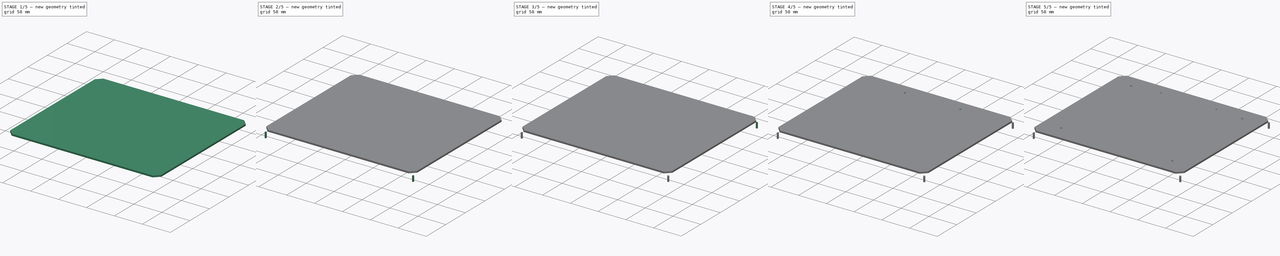
[diagram: build sequence overview — one tinted view per stage of 5, left to right]
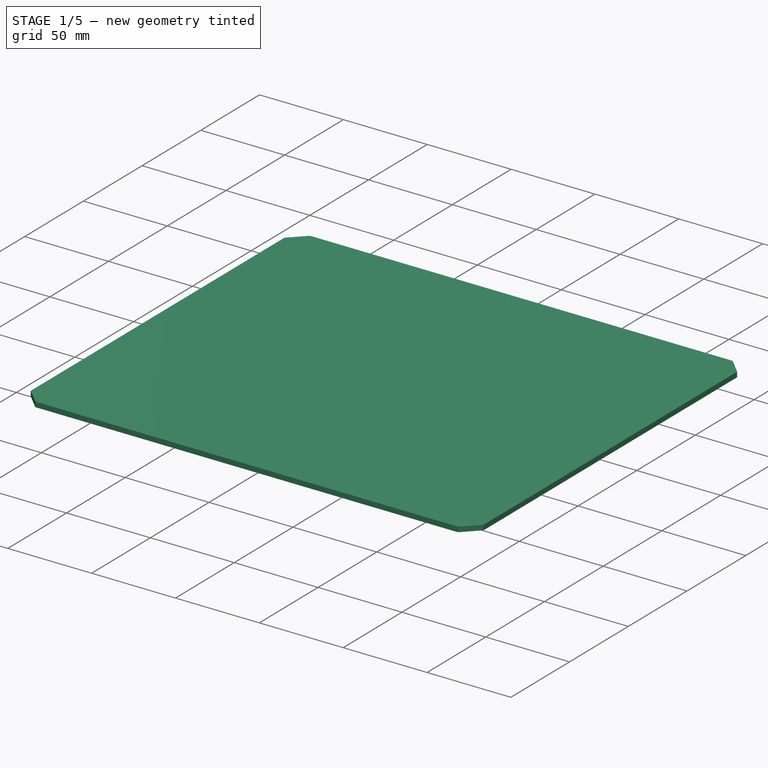
[diagram: stage 1 of 5 — iso view after this stage's code; geometry added in this stage tinted green]
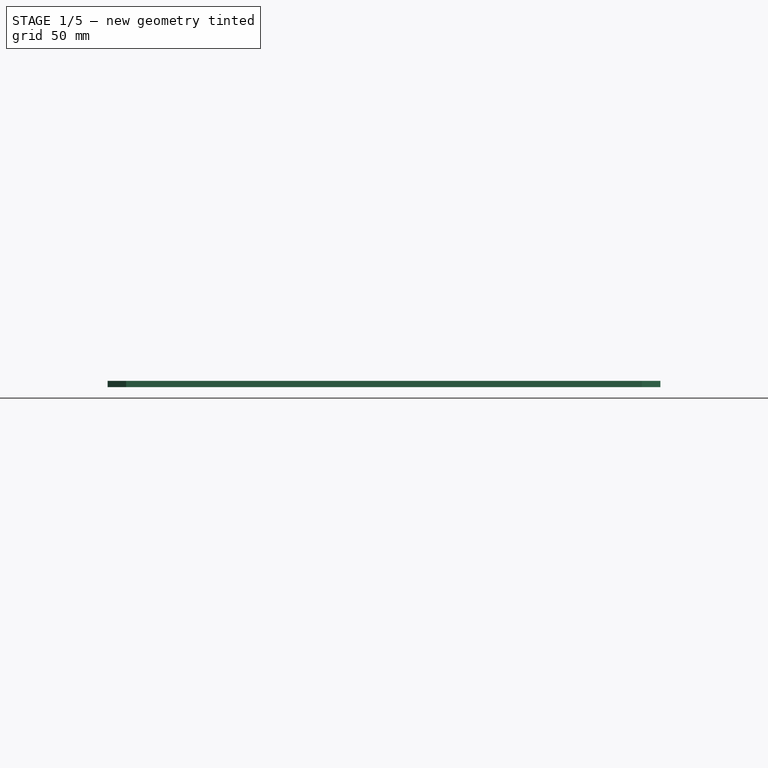
[diagram: stage 1 of 5 — front view after this stage's code; geometry added in this stage tinted green]
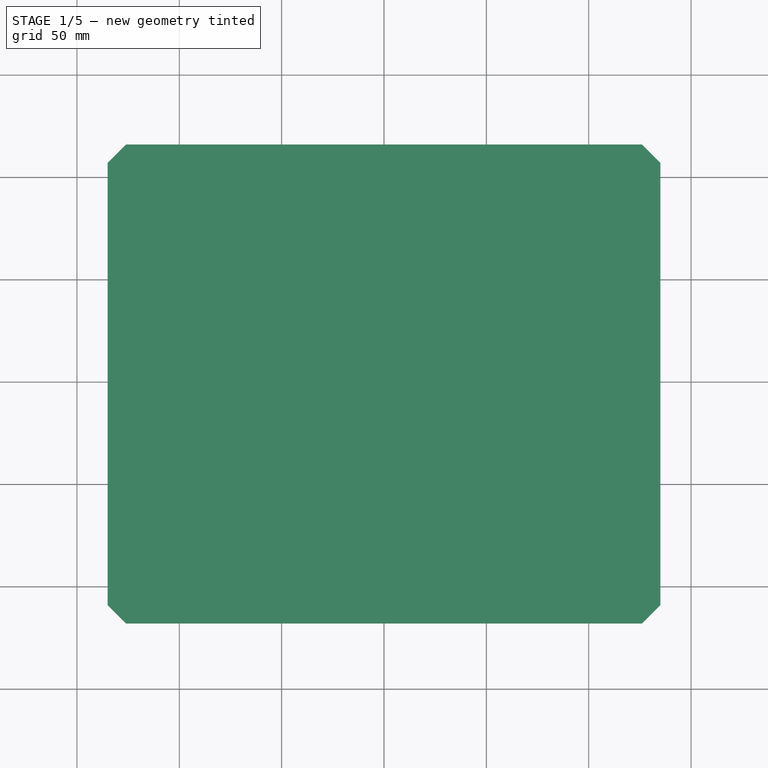
[diagram: stage 1 of 5 — top view after this stage's code; geometry added in this stage tinted green]
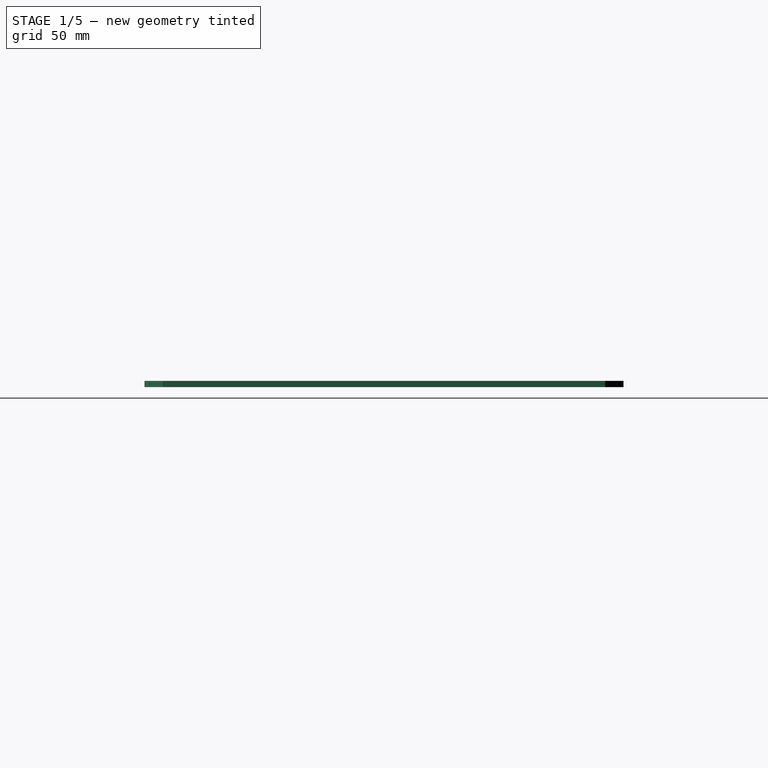
[diagram: stage 1 of 5 — right view after this stage's code; geometry added in this stage tinted green]
FCSTD DOCUMENT  (FreeCAD 0.19R24291 (Git))
Label: glass-bed
License: Other
LicenseURL: GPL3
objects: Part::FeaturePython×12, TechDraw::DrawViewDimension×8, Sketcher::SketchObject×6, PartDesign::Pad×4, PartDesign::Body×4, PartDesign::Pocket×2, PartDesign::Chamfer×2, App::Part×2, TechDraw::DrawSVGTemplate×2, TechDraw::DrawViewPart×2, TechDraw::DrawViewBalloon×2, TechDraw::DrawViewAnnotation×2, TechDraw::DrawPage×2
note: 38 computed .brp shape members not serialized (recipe doc carries the construction recipe); baked Part::Feature solids carry a one-line shape summary decoded from their .brp

FEATURE [PartDesign::Body] Body  label="180-aluminum-plate"
  Group = -> [Sketch,Pad,Sketch001,Pocket]
  Origin = -> Origin
  Placement = pos=(0,0,-7) rot=(0,0,1;0rad)
  Tip = -> Pocket
FEATURE [Sketcher::SketchObject] Sketch002
  FullyConstrained = true
  MapMode = 5
  Support = -> [XY_Plane001]
  sketch-geometry (4):
    g0: LineSegment StartX=-103 StartY=93 StartZ=0 EndX=103 EndY=93 EndZ=0
    g1: LineSegment StartX=103 StartY=93 StartZ=0 EndX=103 EndY=-93 EndZ=0
    g2: LineSegment StartX=103 StartY=-93 StartZ=0 EndX=-103 EndY=-93 EndZ=0
    g3: LineSegment StartX=-103 StartY=-93 StartZ=0 EndX=-103 EndY=93 EndZ=0
  constraints (12):
    c: Coincident(g0,g1)
    c: Coincident(g1,g2)
    c: Coincident(g2,g3)
    c: Coincident(g3,g0)
    c: Horizontal(g0)
    c: Horizontal(g2)
    c: Vertical(g1)
    c: Vertical(g3)
    c: DistanceX(g2,g2) = 206
    c: DistanceY(g1,g1) = 186
    c: DistanceY(g-1,g0) = 93
    c: DistanceX(g2,g-1) = 103
FEATURE [PartDesign::Pad] Pad001
  Direction = (1,1,1)
  Length = 3
  Length2 = 100
  Profile = -> Sketch002
  Type = 0
FEATURE [PartDesign::Chamfer] Chamfer
  Angle = 45
  Base = -> Pad001 [Edge8,Edge5,Edge2,Edge1]
  BaseFeature = -> Pad001
  ChamferType = 0
  FlipDirection = false
  Size = 9
  Size2 = 1
  SupportTransform = false
FEATURE [Sketcher::SketchObject] Sketch005
  FullyConstrained = true
  MapMode = 5
  Support = -> [XY_Plane005]
  sketch-geometry (4):
    g0: LineSegment StartX=-135 StartY=116 StartZ=0 EndX=135 EndY=116 EndZ=0
    g1: LineSegment StartX=135 StartY=116 StartZ=0 EndX=135 EndY=-118 EndZ=0
    g2: LineSegment StartX=135 StartY=-118 StartZ=0 EndX=-135 EndY=-118 EndZ=0
    g3: LineSegment StartX=-135 StartY=-118 StartZ=0 EndX=-135 EndY=116 EndZ=0
  constraints (12):
    c: Coincident(g0,g1)
    c: Coincident(g1,g2)
    c: Coincident(g2,g3)
    c: Coincident(g3,g0)
    c: Horizontal(g0)
    c: Horizontal(g2)
    c: Vertical(g1)
    c: Vertical(g3)
    c: DistanceX(g2,g2) = 270
    c: DistanceX(g2,g-1) = 135
    c: DistanceY(g2,g-1) = 118
    c: DistanceY(g-1,g0) = 116
FEATURE [PartDesign::Pad] Pad003
  Direction = (1,1,1)
  Length = 3
  Length2 = 100
  Profile = -> Sketch005
  Type = 0
FEATURE [PartDesign::Chamfer] Chamfer001
  Angle = 45
  Base = -> Pad003 [Edge1,Edge8,Edge5,Edge2]
  BaseFeature = -> Pad003
  ChamferType = 0
  FlipDirection = false
  Size = 9
  Size2 = 1
  SupportTransform = false
FEATURE [PartDesign::Body] Body003  label="250-glass-plate"
  Group = -> [Sketch005,Pad003,Chamfer001]
  Origin = -> Origin005
  Tip = -> Chamfer001
FEATURE [App::Part] Part001  label="250-glass-bed"
  Group = -> [Body002,Body003]
  Origin = -> Origin004
FEATURE [TechDraw::DrawSVGTemplate] Template
  EditableTexts = AuthorName=SnakeOil XY; CheckDate=-; CreationDate=2021-11-17; DrawingNumber=1 of 1; FC-Scale=1; FC-Title=180 glass plate; SheetNumber=1; Subtitle=206mm x 186mm (3 or 4mm thick); SupervisorName=-; Weight=-
  Height = 297
  Orientation = 1
  Width = 420
FEATURE [TechDraw::DrawViewPart] View
  CoarseView = false
  Direction = (0,0,1)
  Focus = 100
  HardHidden = false
  IsoCount = 0
  IsoHidden = false
  IsoVisible = false
  LockPosition = false
  Perspective = false
  Rotation = 0
  ScaleType = 0
  SeamHidden = false
  SeamVisible = true
  SmoothHidden = false
  SmoothVisible = true
  Source = -> [Body001]
  X = 147.114
  XDirection = (1,0,0)
  Y = 184.793
FEATURE [TechDraw::DrawViewDimension] Dimension
  Arbitrary = false
  ArbitraryTolerances = false
  EqualTolerance = true
  FormatSpec = %.2f
  FormatSpecOverTolerance = %+.2f
  FormatSpecUnderTolerance = %+.2f
  Inverted = false
  LockPosition = false
  MeasureType = 1
  OverTolerance = 0
  References2D = -> [View]
  Rotation = 0
  ScaleType = 0
  TheoreticalExact = false
  Type = 1
  UnderTolerance = 0
  X = -2.4228
  Y = -105.454
FEATURE [TechDraw::DrawViewDimension] Dimension001
  Arbitrary = false
  ArbitraryTolerances = false
  EqualTolerance = true
  FormatSpec = %.2f
  FormatSpecOverTolerance = %+.2f
  FormatSpecUnderTolerance = %+.2f
  Inverted = false
  LockPosition = false
  MeasureType = 1
  OverTolerance = 0
  References2D = -> [View]
  Rotation = 0
  ScaleType = 0
  TheoreticalExact = false
  Type = 2
  UnderTolerance = 0
  X = -118.814
  Y = -2.41699
FEATURE [TechDraw::DrawViewDimension] Dimension002
  Arbitrary = false
  ArbitraryTolerances = false
  EqualTolerance = true
  FormatSpec = %.2f
  FormatSpecOverTolerance = %+.2f
  FormatSpecUnderTolerance = %+.2f
  Inverted = false
  LockPosition = false
  MeasureType = 1
  OverTolerance = 0
  References2D = -> [View]
  Rotation = 0
  ScaleType = 0
  TheoreticalExact = false
  Type = 1
  UnderTolerance = 0
  X = -86.415
  Y = -97.04
FEATURE [TechDraw::DrawViewDimension] Dimension003
  Arbitrary = false
  ArbitraryTolerances = false
  EqualTolerance = true
  FormatSpec = %.2f
  FormatSpecOverTolerance = %+.2f
  FormatSpecUnderTolerance = %+.2f
  Inverted = false
  LockPosition = false
  MeasureType = 1
  OverTolerance = 0
  References2D = -> [View]
  Rotation = 0
  ScaleType = 0
  TheoreticalExact = false
  Type = 2
  UnderTolerance = 0
  X = -112.357
  Y = -68.1973
FEATURE [TechDraw::DrawViewBalloon] Balloon
  BubbleShape = 6
  EndType = 0
  EndTypeScale = 1
  KinkLength = 5
  LockPosition = false
  OriginX = 102.509
  OriginY = -85.123
  Rotation = 0
  ScaleType = 0
  ShapeScale = 1
  SourceView = -> View
  Text = 4x 9mm chamfer
  TextWrapLen = -1
  X = 135.218
  Y = -91.4233
FEATURE [TechDraw::DrawViewAnnotation] Annotation
  Font = osifont
  LineSpace = 80
  LockPosition = false
  MaxWidth = -1
  Rotation = 0
  ScaleType = 0
  Text = Dimensions in mm
  TextSize = 5
  TextStyle = 0
  X = 287.058
  Y = 31.3242
FEATURE [TechDraw::DrawPage] Page  label="180-glass-plate-drawing"
  KeepUpdated = true
  NextBalloonIndex = 2
  ProjectionType = 0
  Template = -> Template
  Views = -> [View,Dimension,Dimension001,Dimension002,Dimension003,Balloon,Annotation]
FEATURE [TechDraw::DrawSVGTemplate] Template001
  EditableTexts = AuthorName=SnakeOil XY; CheckDate=-; CreationDate=2021-11-17; DrawingNumber=1 of 1; FC-Scale=0.75; FC-Title=250 glass plate; SheetNumber=1; Subtitle=270mm x 234mm (3 or 4mm thick); SupervisorName=-; Weight=-
  Height = 297
  Orientation = 1
  Width = 420
FEATURE [TechDraw::DrawViewPart] View001
  CoarseView = false
  Direction = (0,0,1)
  Focus = 100
  HardHidden = false
  IsoCount = 0
  IsoHidden = false
  IsoVisible = false
  LockPosition = false
  Perspective = false
  Rotation = 0
  Scale = 0.75
  ScaleType = 0
  SeamHidden = false
  SeamVisible = true
  SmoothHidden = false
  SmoothVisible = true
  Source = -> [Chamfer001]
  X = 140.818
  XDirection = (1,0,0)
  Y = 178.706
FEATURE [TechDraw::DrawViewDimension] Dimension004
  Arbitrary = false
  ArbitraryTolerances = false
  EqualTolerance = true
  FormatSpec = %.2f
  FormatSpecOverTolerance = %+.2f
  FormatSpecUnderTolerance = %+.2f
  Inverted = false
  LockPosition = false
  MeasureType = 1
  OverTolerance = 0
  References2D = -> [View001]
  Rotation = 0
  ScaleType = 0
  TheoreticalExact = false
  Type = 1
  UnderTolerance = 0
  X = 1.18457
  Y = -100.611
FEATURE [TechDraw::DrawViewDimension] Dimension005
  Arbitrary = false
  ArbitraryTolerances = false
  EqualTolerance = true
  FormatSpec = %.2f
  FormatSpecOverTolerance = %+.2f
  FormatSpecUnderTolerance = %+.2f
  Inverted = false
  LockPosition = false
  MeasureType = 1
  OverTolerance = 0
  References2D = -> [View001]
  Rotation = 0
  ScaleType = 0
  TheoreticalExact = false
  Type = 2
  UnderTolerance = 0
  X = -123.688
  Y = 4.1697
FEATURE [TechDraw::DrawViewAnnotation] Annotation001
  Font = osifont
  LineSpace = 80
  LockPosition = false
  MaxWidth = -1
  Rotation = 0
  ScaleType = 0
  Text = Dimensions in mm
  TextSize = 5
  TextStyle = 0
  X = 286.197
  Y = 31.6089
FEATURE [TechDraw::DrawViewDimension] Dimension006
  Arbitrary = false
  ArbitraryTolerances = false
  EqualTolerance = true
  FormatSpec = %.2f
  FormatSpecOverTolerance = %+.2f
  FormatSpecUnderTolerance = %+.2f
  Inverted = false
  LockPosition = false
  MeasureType = 1
  OverTolerance = 0
  References2D = -> [View001]
  Rotation = 0
  ScaleType = 0
  TheoreticalExact = false
  Type = 2
  UnderTolerance = 0
  X = -114.617
  Y = -66.6854
FEATURE [TechDraw::DrawViewDimension] Dimension007
  Arbitrary = false
  ArbitraryTolerances = false
  EqualTolerance = true
  FormatSpec = %.2f
  FormatSpecOverTolerance = %+.2f
  FormatSpecUnderTolerance = %+.2f
  Inverted = false
  LockPosition = false
  MeasureType = 1
  OverTolerance = 0
  References2D = -> [View001]
  Rotation = 0
  ScaleType = 0
  TheoreticalExact = false
  Type = 1
  UnderTolerance = 0
  X = -86.5031
  Y = -93.0619
FEATURE [TechDraw::DrawViewBalloon] Balloon001
  BubbleShape = 6
  EndType = 0
  EndTypeScale = 1
  KinkLength = 5
  LockPosition = false
  OriginX = 131.72
  OriginY = -111.747
  Rotation = 0
  ScaleType = 0
  ShapeScale = 1
  SourceView = -> View001
  Text = 4x 9mm chamfer
  TextWrapLen = -1
  X = 184.079
  Y = -122.145
FEATURE [TechDraw::DrawPage] Page001  label="250-glass-plate-drawing"
  KeepUpdated = true
  NextBalloonIndex = 2
  ProjectionType = 0
  Template = -> Template001
  Views = -> [View001,Dimension004,Dimension005,Annotation001,Dimension006,Dimension007,Balloon001]
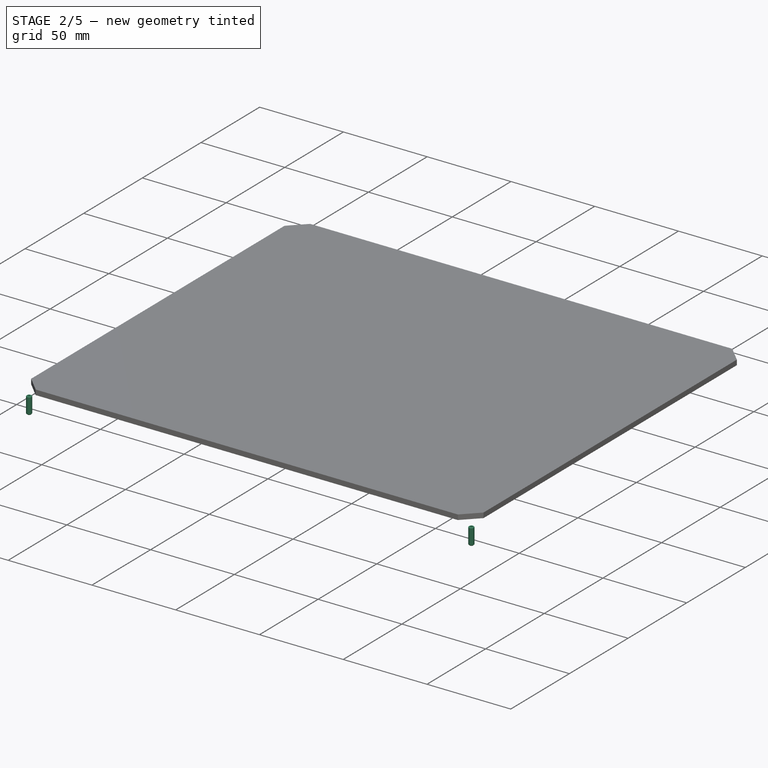
[diagram: stage 2 of 5 — iso view after this stage's code; geometry added in this stage tinted green]
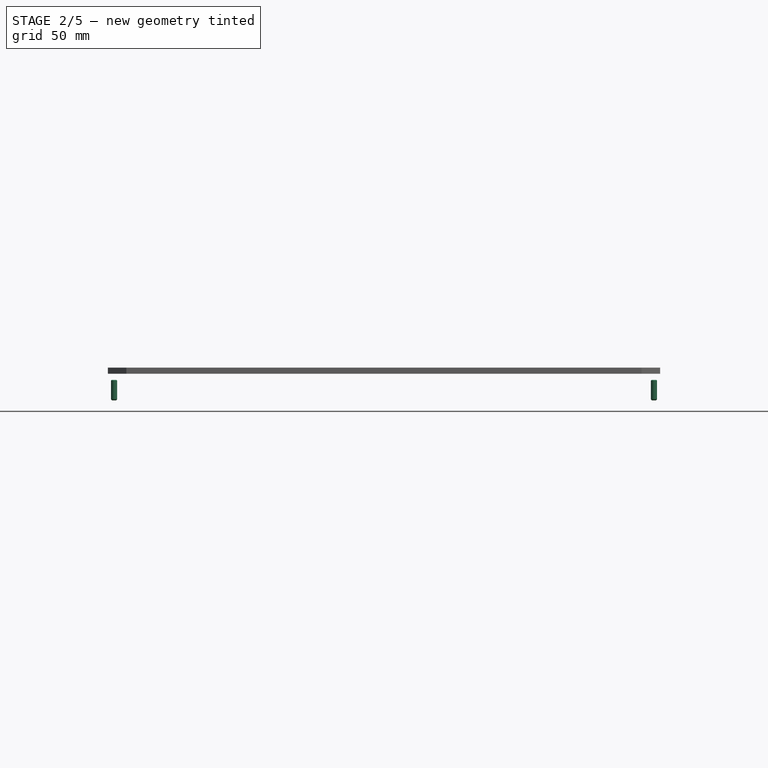
[diagram: stage 2 of 5 — front view after this stage's code; geometry added in this stage tinted green]
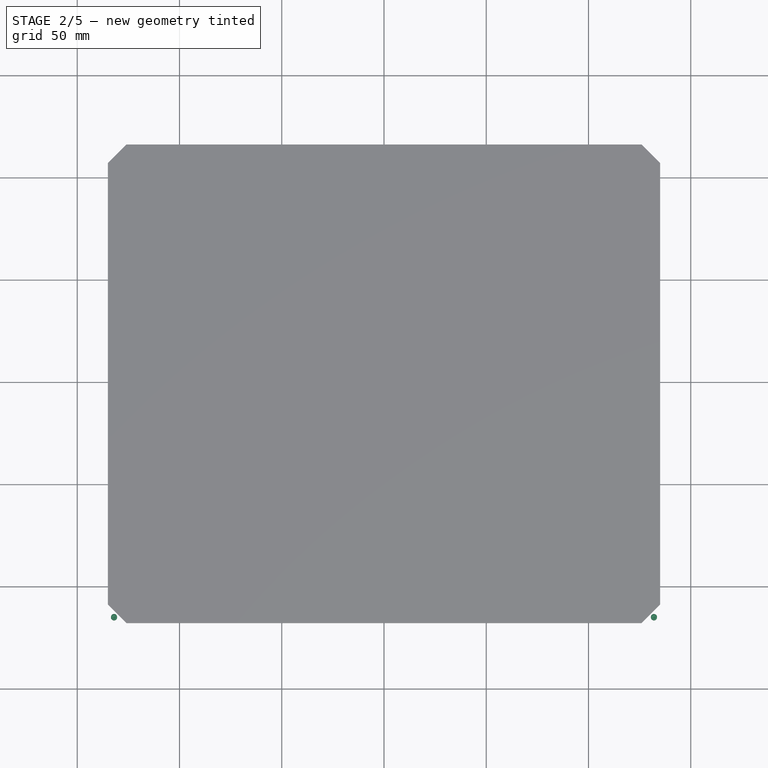
[diagram: stage 2 of 5 — top view after this stage's code; geometry added in this stage tinted green]
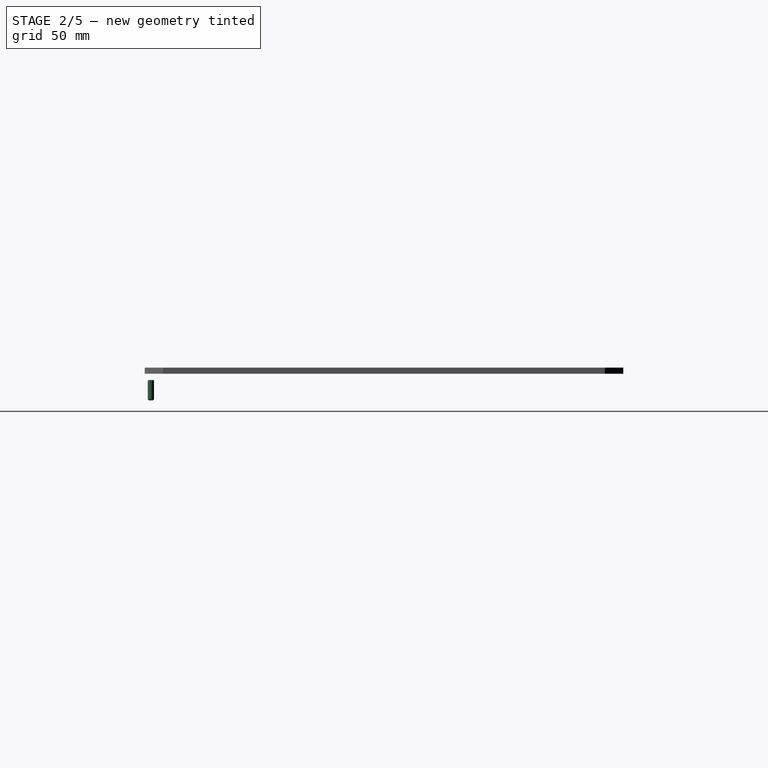
[diagram: stage 2 of 5 — right view after this stage's code; geometry added in this stage tinted green]
FEATURE [PartDesign::Body] Body001  label="180-glass-plate"
  Group = -> [Sketch002,Pad001,Chamfer]
  Origin = -> Origin001
  Tip = -> Chamfer
FEATURE [App::Part] Part  label="180-glass-bed"
  Group = -> [Body,Body001,Screw,Screw001,Screw002,Screw003,Screw004,Screw005]
  Origin = -> Origin002
FEATURE [Sketcher::SketchObject] Sketch003
  FullyConstrained = true
  MapMode = 5
  Support = -> [XY_Plane003]
  sketch-geometry (13):
    g0: LineSegment StartX=-137 StartY=122 StartZ=0 EndX=137 EndY=122 EndZ=0
    g1: LineSegment StartX=137 StartY=122 StartZ=0 EndX=137 EndY=-120 EndZ=0
    g2: LineSegment StartX=137 StartY=-120 StartZ=0 EndX=-137 EndY=-120 EndZ=0
    g3: LineSegment StartX=-137 StartY=-120 StartZ=0 EndX=-137 EndY=122 EndZ=0
    g4: Circle CenterX=-102 CenterY=110 CenterZ=0 NormalX=0 NormalY=0 NormalZ=1 AngleXU=0 Radius=1.9
    g5: Circle CenterX=102 CenterY=110 CenterZ=0 NormalX=0 NormalY=0 NormalZ=1 AngleXU=0 Radius=1.9
    g6: Circle CenterX=-70 CenterY=118 CenterZ=0 NormalX=0 NormalY=0 NormalZ=1 AngleXU=0 Radius=1.3
    g7: Circle CenterX=70 CenterY=118 CenterZ=0 NormalX=0 NormalY=0 NormalZ=1 AngleXU=0 Radius=1.3
    g8: Circle CenterX=0 CenterY=-110 CenterZ=0 NormalX=0 NormalY=0 NormalZ=1 AngleXU=0 Radius=1.9
    g9: Circle CenterX=-132 CenterY=113 CenterZ=0 NormalX=0 NormalY=0 NormalZ=1 AngleXU=0 Radius=1.3
    g10: Circle CenterX=132 CenterY=113 CenterZ=0 NormalX=0 NormalY=0 NormalZ=1 AngleXU=0 Radius=1.3
    g11: Circle CenterX=-132 CenterY=-115 CenterZ=0 NormalX=0 NormalY=0 NormalZ=1 AngleXU=0 Radius=1.3
    g12: Circle CenterX=132 CenterY=-115 CenterZ=0 NormalX=0 NormalY=0 NormalZ=1 AngleXU=0 Radius=1.3
  constraints (39):
    c: Coincident(g0,g1)
    c: Coincident(g1,g2)
    c: Coincident(g2,g3)
    c: Coincident(g3,g0)
    c: Horizontal(g0)
    c: Horizontal(g2)
    c: Vertical(g1)
    c: Vertical(g3)
    c: DistanceX(g0,g0) = 274
    c: DistanceY(g1,g1) = 242
    c: DistanceX(g2,g-1) = 137
    c: DistanceY(g2,g-1) = 120
    c: DistanceY(g8,g-1) = 110
    c: DistanceX(g8,g-1) = 0
    c: DistanceX(g0,g4) = 35
    c: DistanceX(g5,g0) = 35
    c: DistanceX(g7,g5) = 32
    c: DistanceX(g4,g6) = 32
    c: DistanceY(g4,g0) = 12
    c: DistanceY(g5,g0) = 12
    c: DistanceY(g7,g0) = 4
    c: DistanceY(g6,g0) = 4
    c: Radius(g6) = 1.3
    c: Radius(g7) = 1.3
    c: Radius(g4) = 1.9
    c: Radius(g5) = 1.9
    c: Radius(g8) = 1.9
    c: Radius(g9) = 1.3
    c: Radius(g10) = 1.3
    c: DistanceY(g9,g0) = 9
    c: DistanceY(g10,g0) = 9
    c: DistanceX(g10,g0) = 5
    c: DistanceX(g0,g9) = 5
    c: Radius(g11) = 1.3
    c: Radius(g12) = 1.3
    c: DistanceX(g2,g11) = 5
    c: DistanceX(g12,g1) = 5
    c: DistanceY(g1,g12) = 5
    c: DistanceY(g2,g11) = 5
FEATURE [PartDesign::Pad] Pad002
  Direction = (1,1,1)
  Length = 6
  Length2 = 100
  Profile = -> Sketch003
  Type = 0
FEATURE [Sketcher::SketchObject] Sketch004
  FullyConstrained = true
  MapMode = 5
  Placement = pos=(0,0,6) rot=(0,0,1;0rad)
  Support = -> [Pad002]
  sketch-geometry (3):
    g0: Circle CenterX=-102 CenterY=110 CenterZ=0 NormalX=0 NormalY=0 NormalZ=1 AngleXU=0 Radius=4
    g1: Circle CenterX=102 CenterY=110 CenterZ=0 NormalX=0 NormalY=0 NormalZ=1 AngleXU=0 Radius=4
    g2: Circle CenterX=0 CenterY=-110 CenterZ=0 NormalX=0 NormalY=0 NormalZ=1 AngleXU=0 Radius=4
  constraints (9):
    c: DistanceY(g-1,g0) = 110
    c: DistanceY(g-1,g1) = 110
    c: DistanceX(g-1,g1) = 102
    c: DistanceX(g0,g-1) = 102
    c: PointOnObject(g2,g-2)
    c: DistanceY(g2,g-1) = 110
    c: Radius(g0) = 4
    c: Radius(g1) = 4
    c: Radius(g2) = 4
FEATURE [PartDesign::Pocket] Pocket001
  BaseFeature = -> Pad002
  Length = 3
  Length2 = 100
  Profile = -> Sketch004
  Type = 0
FEATURE [Part::FeaturePython] Screw010  label="M3x10-Screw026"  # Fasteners workbench fastener (typed FeaturePython)
  Placement = pos=(-132,-115,-3) rot=(0,0,1;0rad)
  baseObject = -> Body002 [Edge24]
  diameter = 6
  invert = false
  length = 6
  lengthCustom = 10
  matchOuter = true
  offset = 5
  thread = false
  type = 30
FEATURE [Part::FeaturePython] Screw011  label="M3x10-Screw027"  # Fasteners workbench fastener (typed FeaturePython)
  Placement = pos=(132,-115,-3) rot=(0,0,1;0rad)
  baseObject = -> Body002 [Edge22]
  diameter = 6
  invert = false
  length = 6
  lengthCustom = 10
  matchOuter = true
  offset = 5
  thread = false
  type = 30
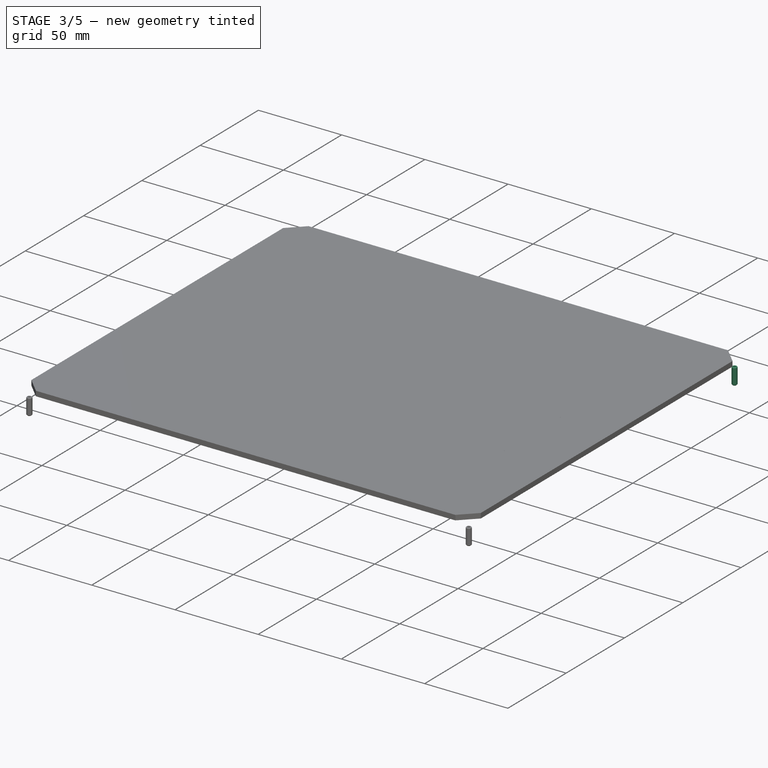
[diagram: stage 3 of 5 — iso view after this stage's code; geometry added in this stage tinted green]
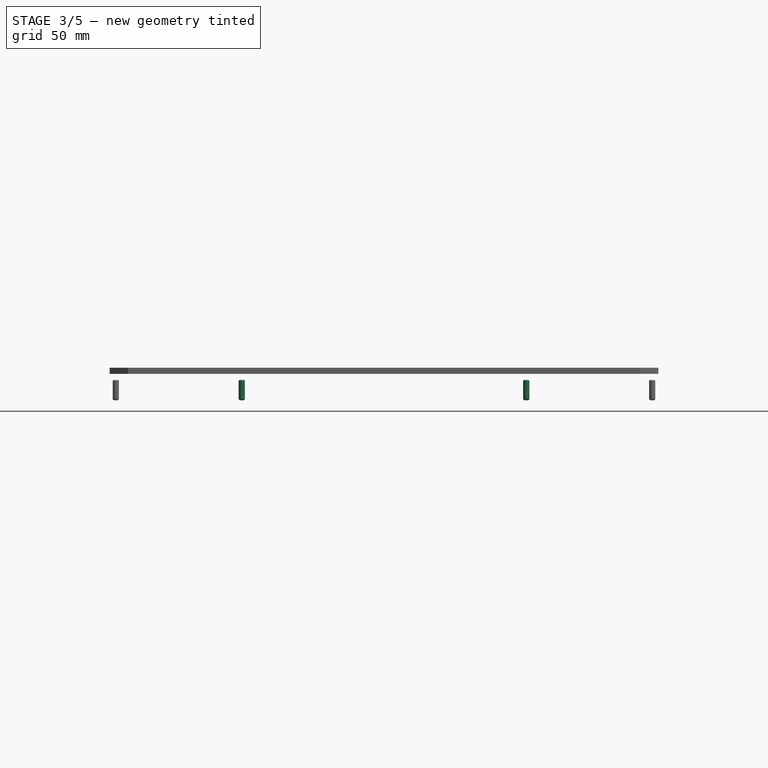
[diagram: stage 3 of 5 — front view after this stage's code; geometry added in this stage tinted green]
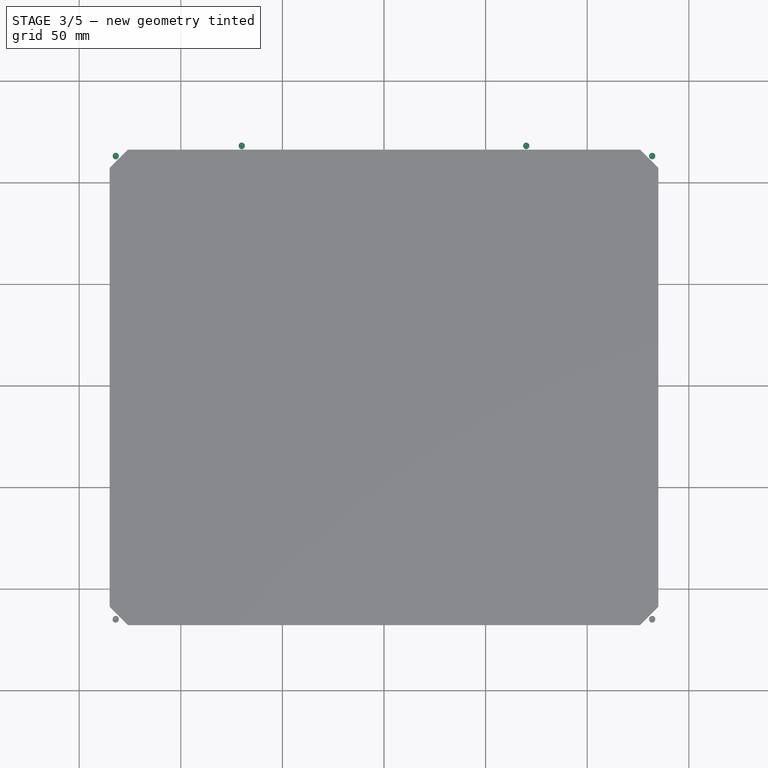
[diagram: stage 3 of 5 — top view after this stage's code; geometry added in this stage tinted green]
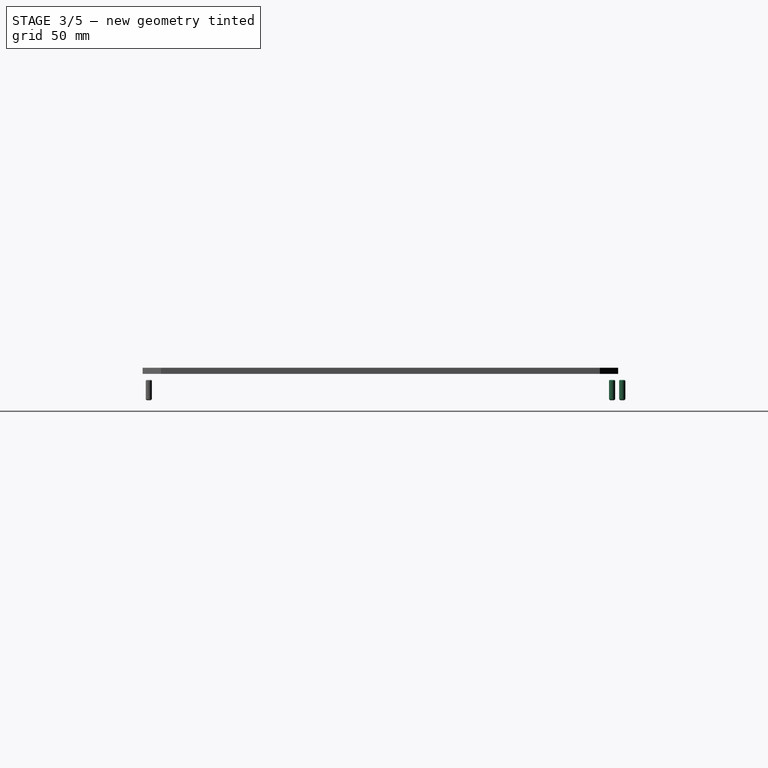
[diagram: stage 3 of 5 — right view after this stage's code; geometry added in this stage tinted green]
FEATURE [PartDesign::Body] Body002  label="250-aluminum-plate"
  Group = -> [Sketch003,Pad002,Sketch004,Pocket001]
  Origin = -> Origin003
  Placement = pos=(0,0,-14) rot=(0,0,1;0rad)
  Tip = -> Pocket001
FEATURE [Part::FeaturePython] Screw006  label="M3x10-Screw022"  # Fasteners workbench fastener (typed FeaturePython)
  Placement = pos=(-132,113,-3) rot=(0,0,1;0rad)
  baseObject = -> Body002 [Edge30]
  diameter = 6
  invert = false
  length = 6
  lengthCustom = 10
  matchOuter = true
  offset = 5
  thread = false
  type = 30
FEATURE [Part::FeaturePython] Screw007  label="M3x10-Screw023"  # Fasteners workbench fastener (typed FeaturePython)
  Placement = pos=(-70,118,-3) rot=(0,0,1;0rad)
  baseObject = -> Body002 [Edge28]
  diameter = 6
  invert = false
  length = 6
  lengthCustom = 10
  matchOuter = true
  offset = 5
  thread = false
  type = 30
FEATURE [Part::FeaturePython] Screw008  label="M3x10-Screw024"  # Fasteners workbench fastener (typed FeaturePython)
  Placement = pos=(70,118,-3) rot=(0,0,1;0rad)
  baseObject = -> Body002 [Edge27]
  diameter = 6
  invert = false
  length = 6
  lengthCustom = 10
  matchOuter = true
  offset = 5
  thread = false
  type = 30
FEATURE [Part::FeaturePython] Screw009  label="M3x10-Screw025"  # Fasteners workbench fastener (typed FeaturePython)
  Placement = pos=(132,113,-3) rot=(0,0,1;0rad)
  baseObject = -> Body002 [Edge25]
  diameter = 6
  invert = false
  length = 6
  lengthCustom = 10
  matchOuter = true
  offset = 5
  thread = false
  type = 30
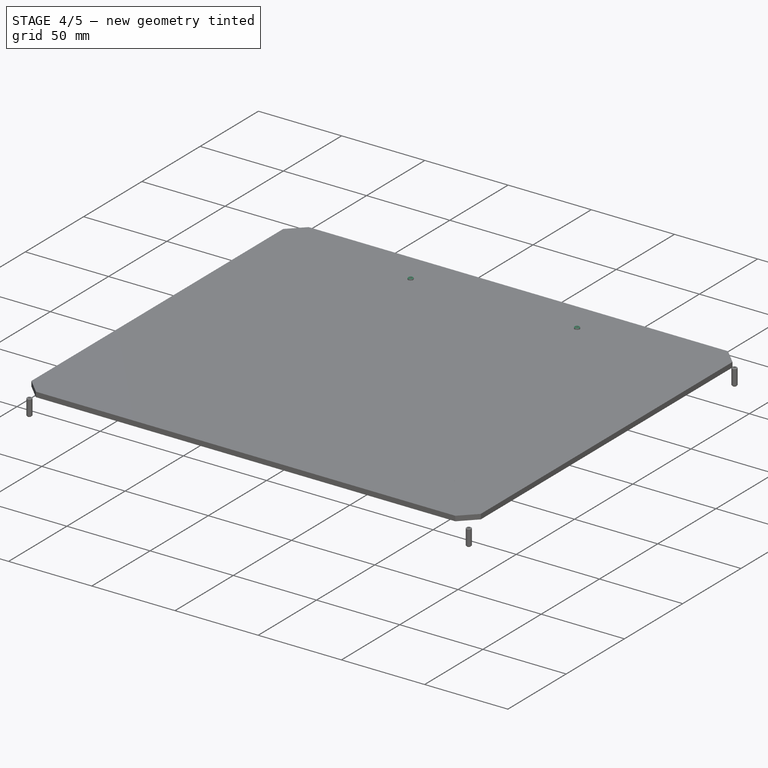
[diagram: stage 4 of 5 — iso view after this stage's code; geometry added in this stage tinted green]
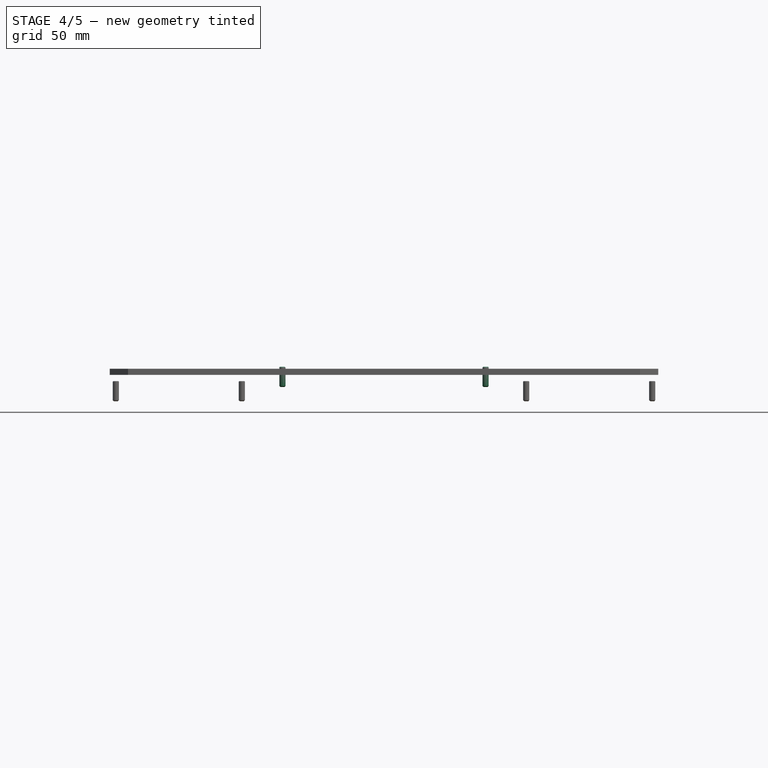
[diagram: stage 4 of 5 — front view after this stage's code; geometry added in this stage tinted green]
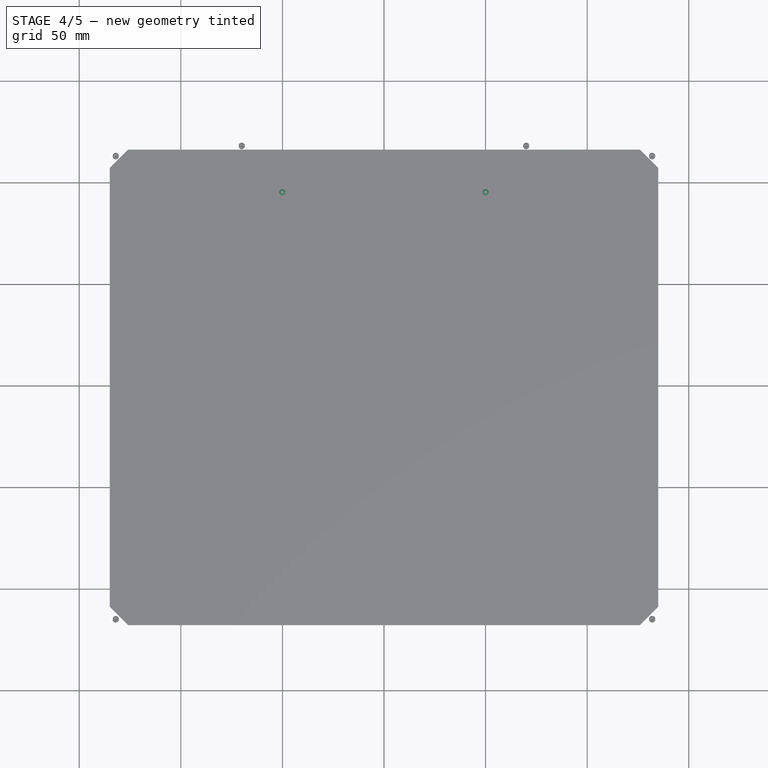
[diagram: stage 4 of 5 — top view after this stage's code; geometry added in this stage tinted green]
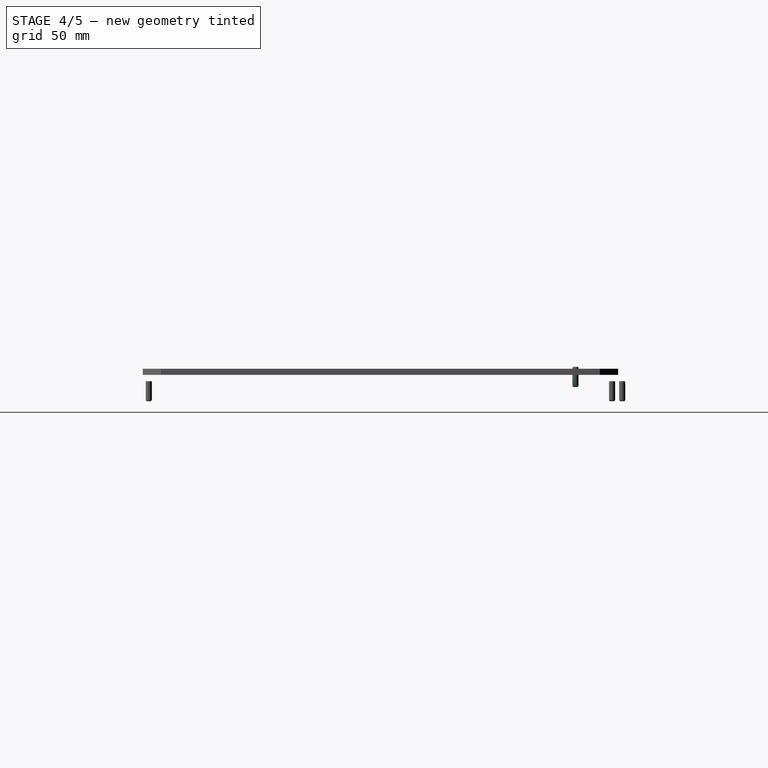
[diagram: stage 4 of 5 — right view after this stage's code; geometry added in this stage tinted green]
FEATURE [Sketcher::SketchObject] Sketch
  FullyConstrained = true
  MapMode = 5
  Support = -> [XY_Plane]
  sketch-geometry (13):
    g0: LineSegment StartX=-105 StartY=98 StartZ=0 EndX=105 EndY=98 EndZ=0
    g1: LineSegment StartX=105 StartY=98 StartZ=0 EndX=105 EndY=-95 EndZ=0
    g2: LineSegment StartX=105 StartY=-95 StartZ=0 EndX=-105 EndY=-95 EndZ=0
    g3: LineSegment StartX=-105 StartY=-95 StartZ=0 EndX=-105 EndY=98 EndZ=0
    g4: Circle CenterX=-50 CenterY=95 CenterZ=0 NormalX=0 NormalY=0 NormalZ=1 AngleXU=0 Radius=1.5
    g5: Circle CenterX=50 CenterY=95 CenterZ=0 NormalX=0 NormalY=0 NormalZ=1 AngleXU=0 Radius=1.5
    g6: Circle CenterX=-100 CenterY=90 CenterZ=0 NormalX=0 NormalY=0 NormalZ=1 AngleXU=0 Radius=1.5
    g7: Circle CenterX=100 CenterY=90 CenterZ=0 NormalX=0 NormalY=0 NormalZ=1 AngleXU=0 Radius=1.5
    g8: Circle CenterX=-100 CenterY=-90 CenterZ=0 NormalX=0 NormalY=0 NormalZ=1 AngleXU=0 Radius=1.5
    g9: Circle CenterX=100 CenterY=-90 CenterZ=0 NormalX=0 NormalY=0 NormalZ=1 AngleXU=0 Radius=1.5
    g10: Circle CenterX=0 CenterY=-85 CenterZ=0 NormalX=0 NormalY=0 NormalZ=1 AngleXU=0 Radius=1.7
    g11: Circle CenterX=-65 CenterY=85 CenterZ=0 NormalX=0 NormalY=0 NormalZ=1 AngleXU=0 Radius=1.7
    g12: Circle CenterX=65 CenterY=85 CenterZ=0 NormalX=0 NormalY=0 NormalZ=1 AngleXU=0 Radius=1.7
  constraints (39):
    c: Coincident(g0,g1)
    c: Coincident(g1,g2)
    c: Coincident(g2,g3)
    c: Coincident(g3,g0)
    c: Horizontal(g0)
    c: Horizontal(g2)
    c: Vertical(g1)
    c: Vertical(g3)
    c: DistanceX(g0,g0) = 210
    c: DistanceY(g3,g3) = 193
    c: DistanceY(g2,g-1) = 95
    c: DistanceX(g0,g-1) = 105
    c: Radius(g4) = 1.5
    c: Radius(g5) = 1.5
    c: DistanceX(g4,g5) = 100
    c: DistanceX(g4,g-1) = 50
    c: DistanceY(g4,g0) = 3
    c: DistanceY(g5,g0) = 3
    c: Radius(g8) = 1.5
    c: Radius(g9) = 1.5
    c: Radius(g6) = 1.5
    c: Radius(g7) = 1.5
    c: DistanceY(g7,g0) = 8
    c: DistanceX(g7,g0) = 5
    c: DistanceX(g0,g6) = 5
    c: DistanceY(g6,g0) = 8
    c: DistanceY(g2,g8) = 5
    c: DistanceY(g1,g9) = 5
    c: DistanceX(g9,g1) = 5
    c: DistanceX(g2,g8) = 5
    c: PointOnObject(g10,g-2)
    c: Radius(g10) = 1.7
    c: DistanceY(g1,g10) = 10
    c: Radius(g11) = 1.7
    c: Radius(g12) = 1.7
    c: DistanceX(g0,g11) = 40
    c: DistanceX(g12,g0) = 40
    c: DistanceY(g12,g0) = 13
    c: DistanceY(g11,g0) = 13
FEATURE [PartDesign::Pad] Pad
  Direction = (1,1,1)
  Length = 6
  Length2 = 100
  Profile = -> Sketch
  Type = 0
FEATURE [Sketcher::SketchObject] Sketch001
  FullyConstrained = true
  MapMode = 5
  Placement = pos=(0,0,6) rot=(0,0,1;0rad)
  Support = -> [Pad]
  sketch-geometry (3):
    g0: Circle CenterX=-65 CenterY=85 CenterZ=0 NormalX=0 NormalY=0 NormalZ=1 AngleXU=0 Radius=3.5
    g1: Circle CenterX=65 CenterY=85 CenterZ=0 NormalX=0 NormalY=0 NormalZ=1 AngleXU=0 Radius=3.5
    g2: Circle CenterX=0 CenterY=-85 CenterZ=0 NormalX=0 NormalY=0 NormalZ=1 AngleXU=0 Radius=3.5
  constraints (9):
    c: Radius(g0) = 3.5
    c: Radius(g1) = 3.5
    c: Radius(g2) = 3.5
    c: DistanceX(g2,g-1) = 0
    c: DistanceY(g2,g-1) = 85
    c: DistanceY(g-1,g1) = 85
    c: DistanceY(g-1,g0) = 85
    c: DistanceX(g0,g-1) = 65
    c: DistanceX(g-1,g1) = 65
FEATURE [PartDesign::Pocket] Pocket
  BaseFeature = -> Pad
  Length = 3
  Length2 = 100
  Profile = -> Sketch001
  Type = 0
FEATURE [Part::FeaturePython] Screw004  label="M3x10-Screw014"  # Fasteners workbench fastener (typed FeaturePython)
  Placement = pos=(-50,95,4) rot=(0,0,1;0rad)
  baseObject = -> Body [Edge28]
  diameter = 6
  invert = false
  length = 6
  lengthCustom = 10
  matchOuter = true
  offset = 5
  thread = false
  type = 30
FEATURE [Part::FeaturePython] Screw005  label="M3x10-Screw015"  # Fasteners workbench fastener (typed FeaturePython)
  Placement = pos=(50,95,4) rot=(0,0,1;0rad)
  baseObject = -> Body [Edge27]
  diameter = 6
  invert = false
  length = 6
  lengthCustom = 10
  matchOuter = true
  offset = 5
  thread = false
  type = 30
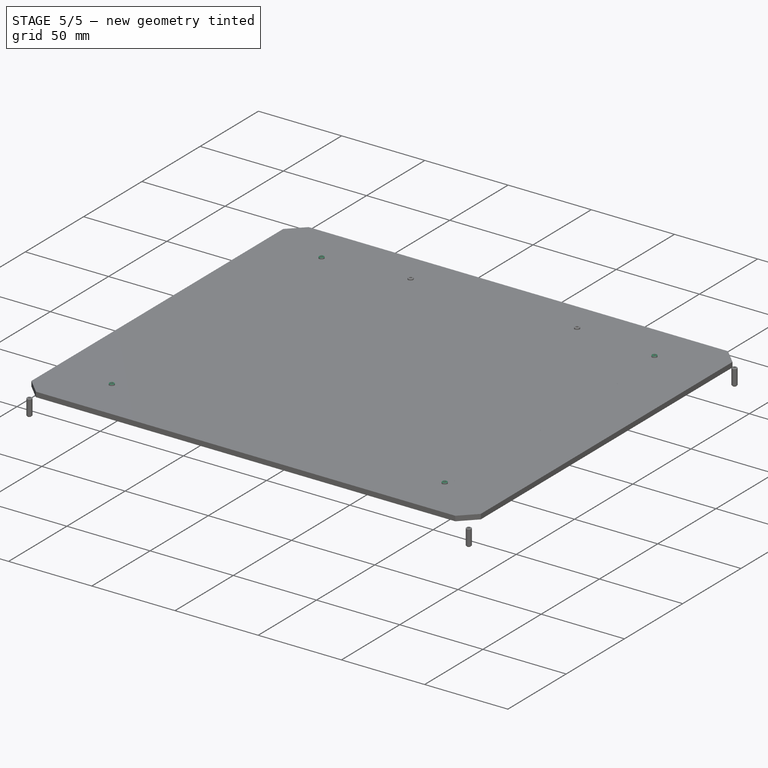
[diagram: stage 5 of 5 — iso view after this stage's code; geometry added in this stage tinted green]
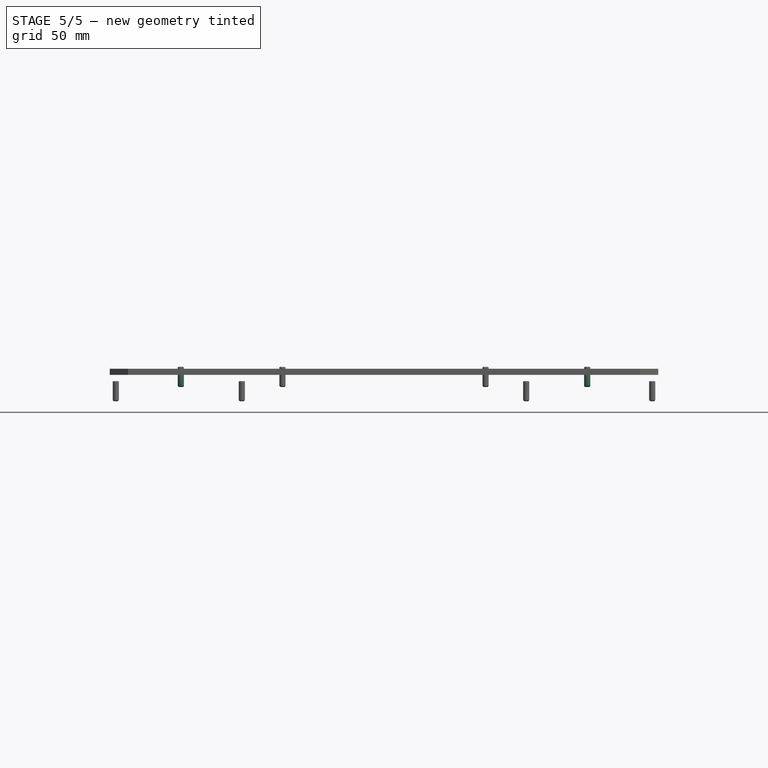
[diagram: stage 5 of 5 — front view after this stage's code; geometry added in this stage tinted green]
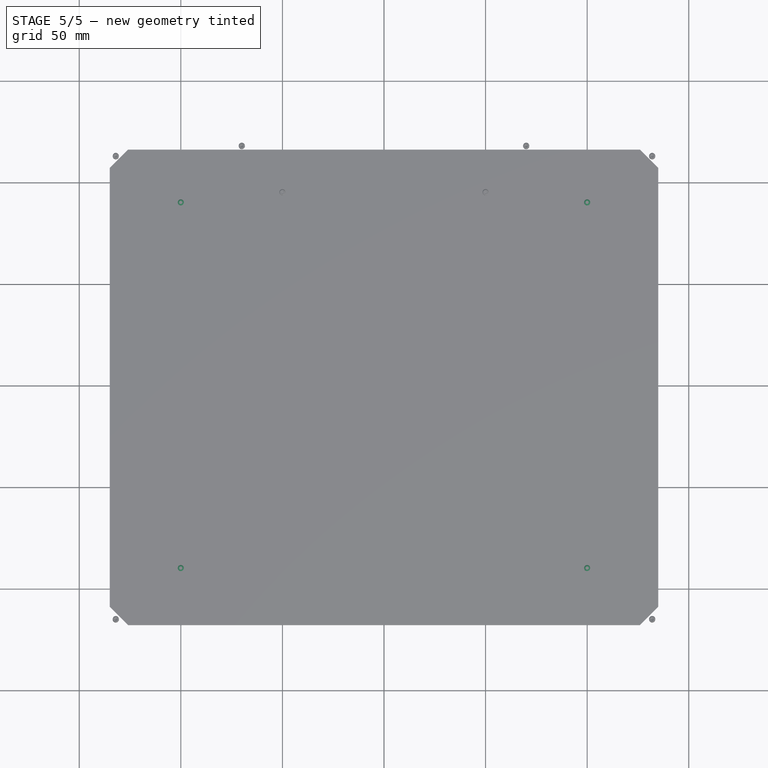
[diagram: stage 5 of 5 — top view after this stage's code; geometry added in this stage tinted green]
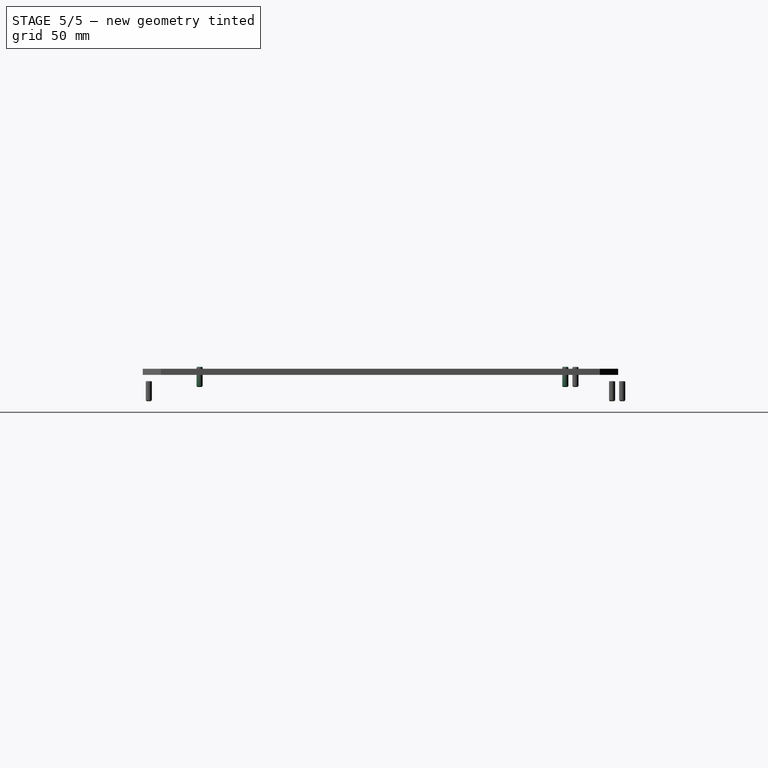
[diagram: stage 5 of 5 — right view after this stage's code; geometry added in this stage tinted green]
FEATURE [Part::FeaturePython] Screw  label="M3x10-Screw"  # Fasteners workbench fastener (typed FeaturePython)
  Placement = pos=(-100,90,4) rot=(0,0,1;0rad)
  baseObject = -> Body [Edge30]
  diameter = 6
  invert = false
  length = 6
  lengthCustom = 10
  matchOuter = true
  offset = 5
  thread = false
  type = 30
FEATURE [Part::FeaturePython] Screw001  label="M3x10-Screw011"  # Fasteners workbench fastener (typed FeaturePython)
  Placement = pos=(-100,-90,4) rot=(0,0,1;0rad)
  baseObject = -> Body [Edge24]
  diameter = 6
  invert = false
  length = 6
  lengthCustom = 10
  matchOuter = true
  offset = 5
  thread = false
  type = 30
FEATURE [Part::FeaturePython] Screw002  label="M3x10-Screw012"  # Fasteners workbench fastener (typed FeaturePython)
  Placement = pos=(100,90,4) rot=(0,0,1;0rad)
  baseObject = -> Body [Edge25]
  diameter = 6
  invert = false
  length = 6
  lengthCustom = 10
  matchOuter = true
  offset = 5
  thread = false
  type = 30
FEATURE [Part::FeaturePython] Screw003  label="M3x10-Screw013"  # Fasteners workbench fastener (typed FeaturePython)
  Placement = pos=(100,-90,4) rot=(0,0,1;0rad)
  baseObject = -> Body [Edge22]
  diameter = 6
  invert = false
  length = 6
  lengthCustom = 10
  matchOuter = true
  offset = 5
  thread = false
  type = 30
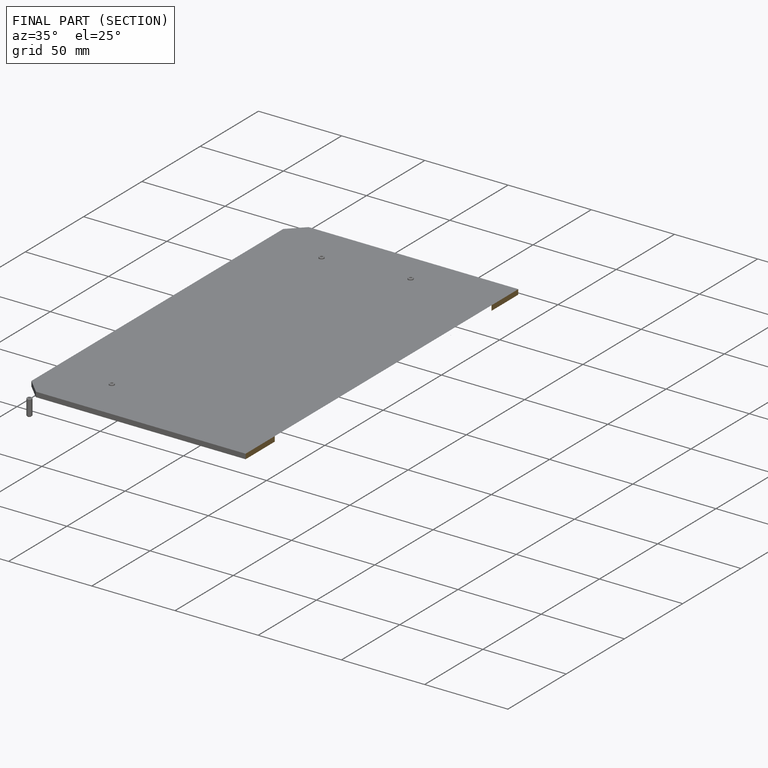
[diagram: finished part — half-section view (interior)]
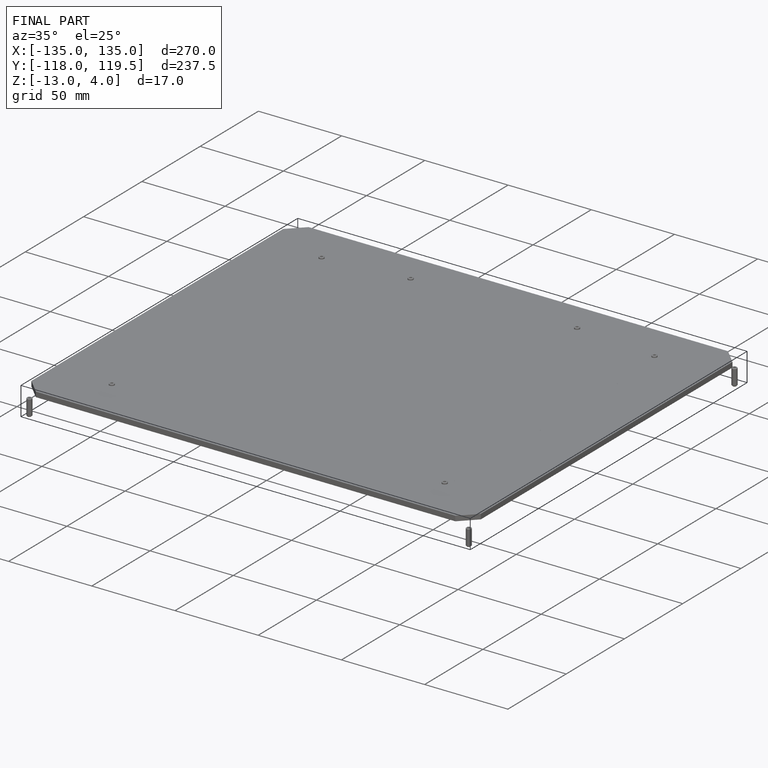
[diagram: finished part — iso view with bounding-box wireframe]
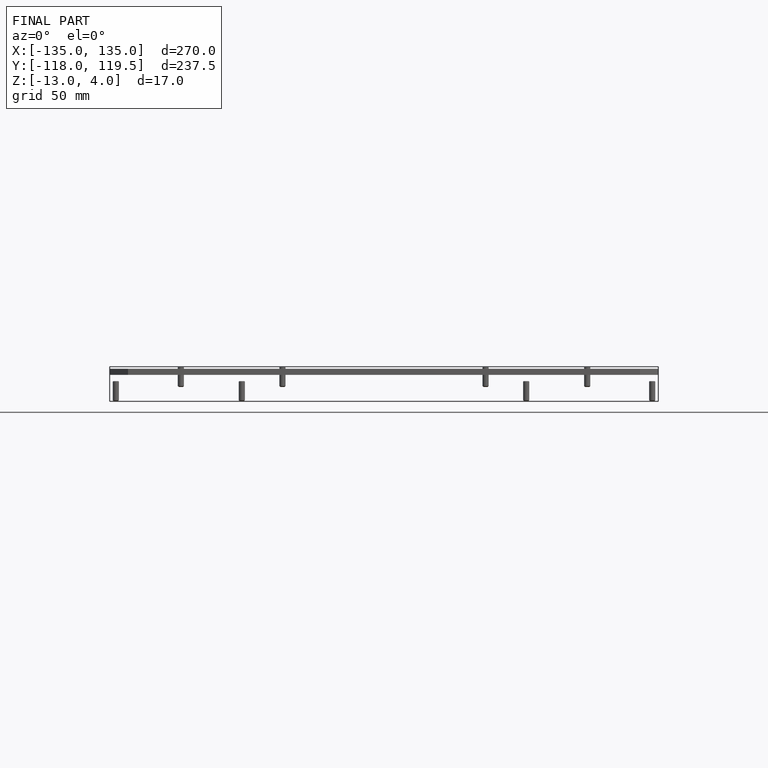
[diagram: finished part — front view with bounding-box wireframe]
